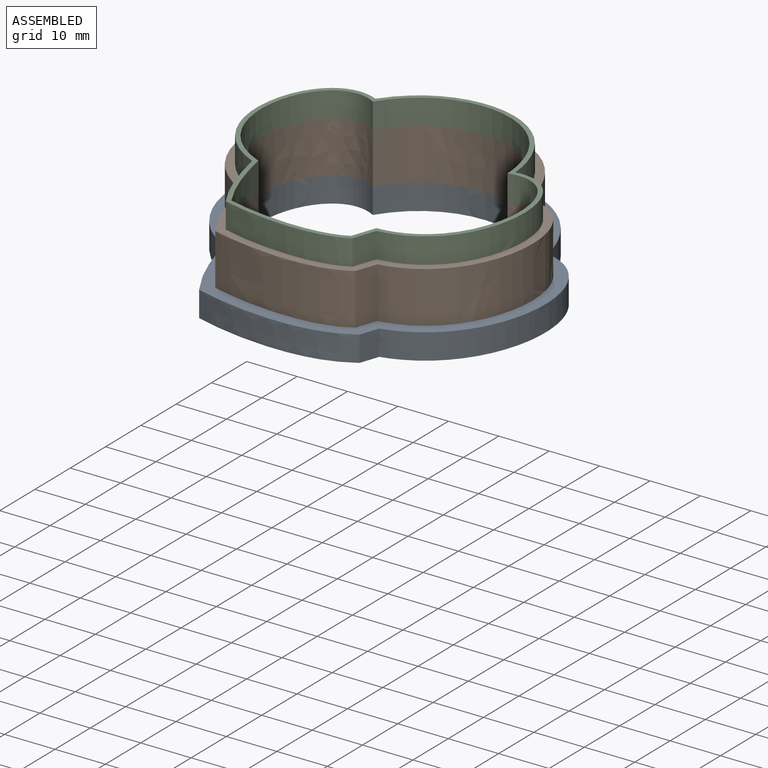
[diagram: assembled view]
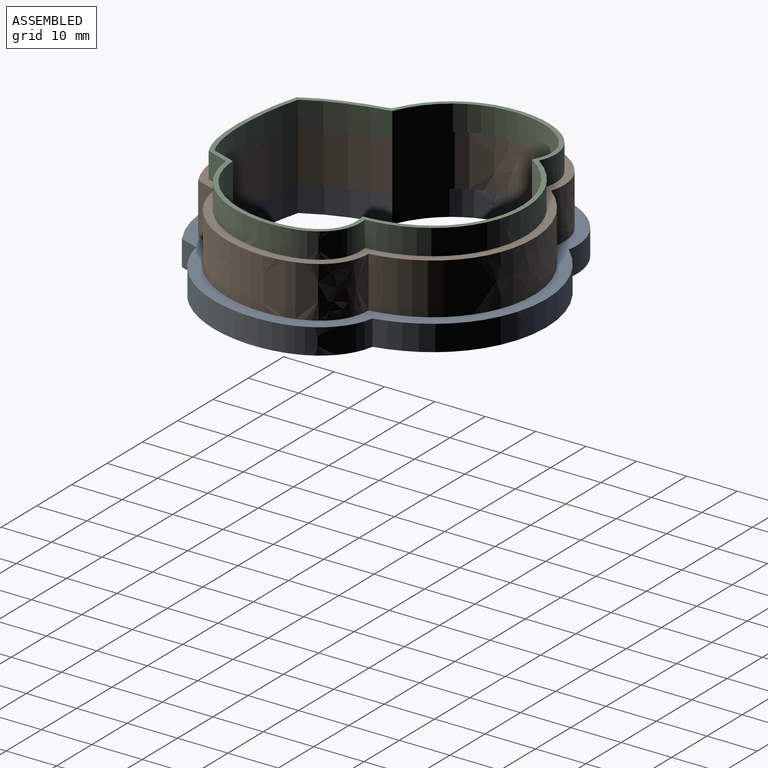
[diagram: assembled view, second angle]
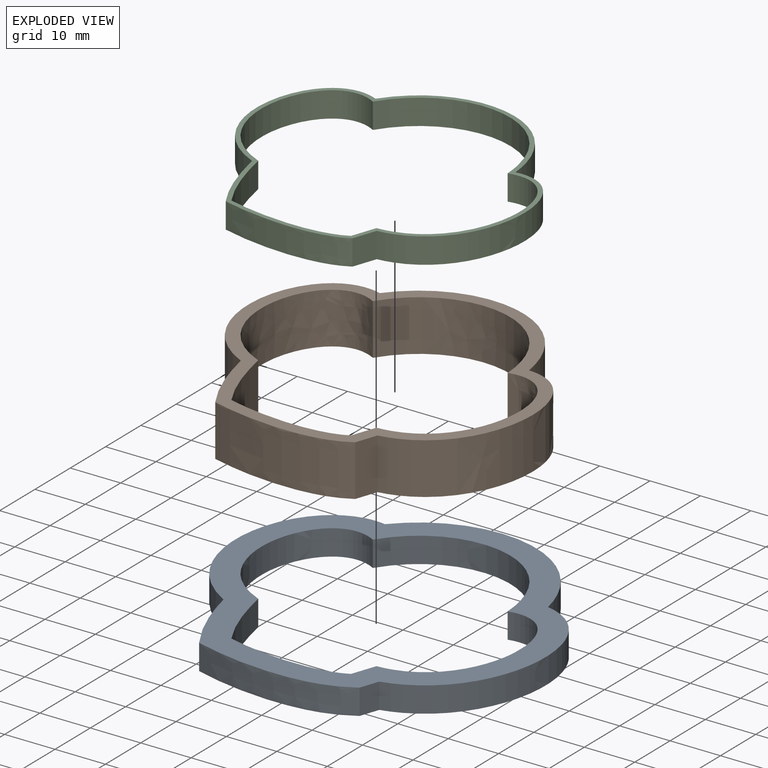
[diagram: exploded view]
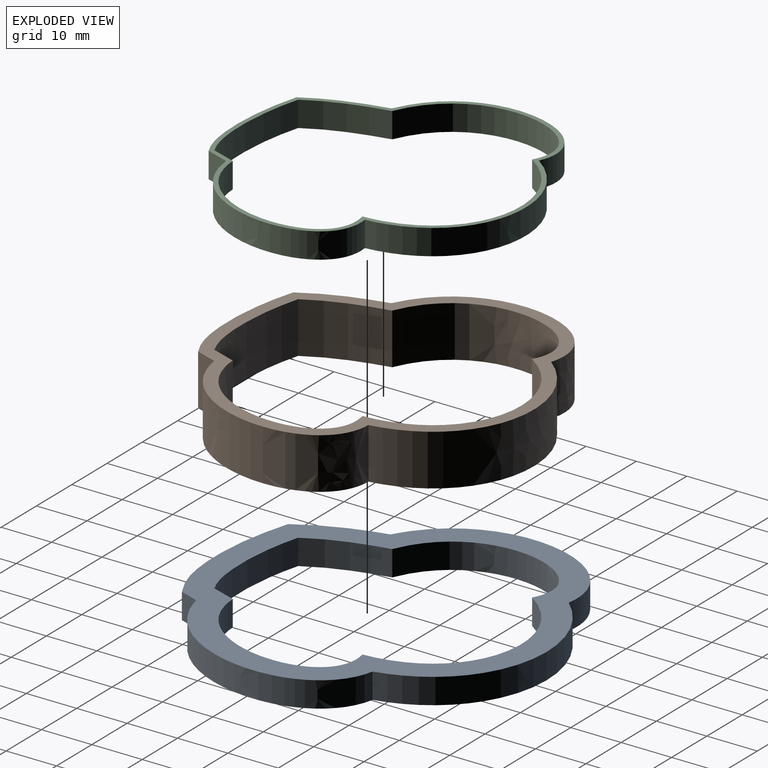
[diagram: exploded view, second angle]
ASSEMBLY  parts=3 mates=2
PART A: 14 faces, bbox 67.3x65.2x5.1 mm
  f0: plane 67.31x65.25mm, normal (0,0,1), area 990.6mm2, adj f2,f3,f4,f5,f6,f7,f8,f9
  f1: plane 67.31x65.25mm, normal (0,0,-1), area 990.6mm2, adj f2,f3,f4,f5,f6,f7,f8,f9
  f2: extruded ~40x18.84mm, area 262.3mm2, adj f0,f1,f3,f7
  f3: extruded ~38.97x16.56mm, area 268.7mm2, adj f0,f1,f2,f4
  f4: extruded ~15.89x6.27mm, area 87.2mm2, adj f0,f1,f3,f5
  f5: extruded ~31.26x5.08mm, area 164.3mm2, adj f0,f1,f4,f6
  f6: plane 5.08x3.76mm, normal (0.94,-0.33,0), area 20.2mm2, adj f0,f1,f5,f7
  f7: extruded ~39.2x16.76mm, area 263.5mm2, adj f0,f1,f2,f6
  f8: extruded ~33.76x18.88mm, area 243mm2, adj f0,f1,f9,f13
  f9: extruded ~30.4x13.28mm, area 222mm2, adj f0,f1,f8,f10
  f10: extruded ~15.02x5.19mm, area 81.1mm2, adj f0,f1,f9,f11
  f11: extruded ~23.74x5.08mm, area 122.8mm2, adj f0,f1,f10,f12
  f12: plane 5.08x4.82mm, normal (-0.94,0.33,0), area 25.9mm2, adj f0,f1,f11,f13
  f13: extruded ~29.72x15.46mm, area 224.5mm2, adj f0,f1,f8,f12
PART B: 14 faces, bbox 67.1x63.7x13.5 mm
  f0: plane 67.07x63.67mm, normal (0,0,1), area 477mm2, adj f2,f3,f4,f5,f6,f7,f8,f9
  f1: plane 67.07x63.67mm, normal (0,0,-1), area 477mm2, adj f2,f3,f4,f5,f6,f7,f8,f9
  f2: extruded ~36.91x18.63mm, area 501.7mm2, adj f0,f1,f3,f7
  f3: extruded ~34.73x14.95mm, area 490.6mm2, adj f0,f1,f2,f4
  f4: extruded ~15.42x10.16mm, area 167.8mm2, adj f0,f1,f3,f5
  f5: extruded ~27.5x10.16mm, area 286.9mm2, adj f0,f1,f4,f6
  f6: plane 10.16x4.22mm, normal (0.94,-0.33,0), area 45.4mm2, adj f0,f1,f5,f7
  f7: extruded ~34.64x16.14mm, area 487.8mm2, adj f0,f1,f2,f6
  f8: extruded ~33.76x18.88mm, area 486mm2, adj f0,f1,f9,f13
  f9: extruded ~30.4x13.28mm, area 444mm2, adj f0,f1,f8,f10
  f10: extruded ~15.02x10.16mm, area 162.2mm2, adj f0,f1,f9,f11
  f11: extruded ~23.74x10.16mm, area 245.7mm2, adj f0,f1,f10,f12
  f12: plane 10.16x4.82mm, normal (-0.94,0.33,0), area 51.8mm2, adj f0,f1,f11,f13
  f13: extruded ~29.72x15.46mm, area 449.1mm2, adj f0,f1,f8,f12
PART C: 14 faces, bbox 63.7x58.7x5.1 mm
  f0: plane 63.71x58.65mm, normal (0,0,1), area 163.1mm2, adj f2,f3,f4,f5,f6,f7,f8,f9
  f1: plane 63.71x58.65mm, normal (0,0,-1), area 163.1mm2, adj f2,f3,f4,f5,f6,f7,f8,f9
  f2: extruded ~34.87x18.72mm, area 245.2mm2, adj f0,f1,f3,f7
  f3: extruded ~31.94x13.87mm, area 230.1mm2, adj f0,f1,f2,f4
  f4: extruded ~15.15x5.38mm, area 82.1mm2, adj f0,f1,f3,f5
  f5: extruded ~25.06x5.08mm, area 130mm2, adj f0,f1,f4,f6
  f6: plane 5.08x4.59mm, normal (0.94,-0.33,0), area 24.7mm2, adj f0,f1,f5,f7
  f7: extruded ~31.47x15.71mm, area 231.2mm2, adj f0,f1,f2,f6
  f8: extruded ~33.76x18.88mm, area 243mm2, adj f0,f1,f9,f13
  f9: extruded ~30.4x13.28mm, area 222mm2, adj f0,f1,f8,f10
  f10: extruded ~15.02x5.19mm, area 81.1mm2, adj f0,f1,f9,f11
  f11: extruded ~23.74x5.08mm, area 122.8mm2, adj f0,f1,f10,f12
  f12: plane 5.08x4.82mm, normal (-0.94,0.33,0), area 25.9mm2, adj f0,f1,f11,f13
  f13: extruded ~29.72x15.46mm, area 224.5mm2, adj f0,f1,f8,f12
PLACE A at identity
PLACE B t=(123.15,6.51,5.08)mm
PLACE C t=(56.81,32.13,15.24)mm
MATE fastened C.f1 <-> B.f0  axis (0,0,1) through (44.1,44.2,15.24)mm
MATE fastened B.f1 <-> A.f0  axis (0,0,1) through (44.1,44.2,5.08)mm
